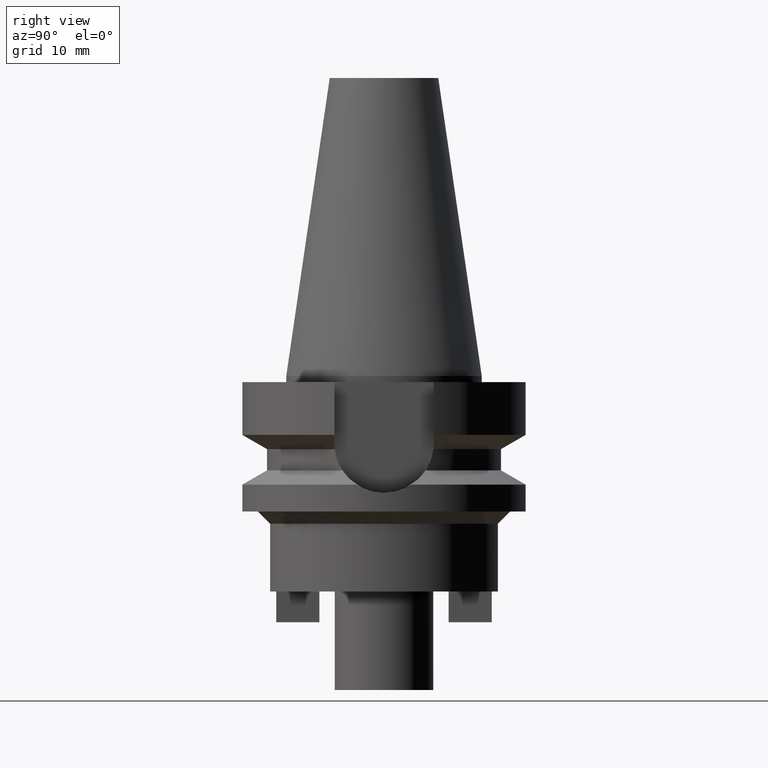
[diagram: clean part render]
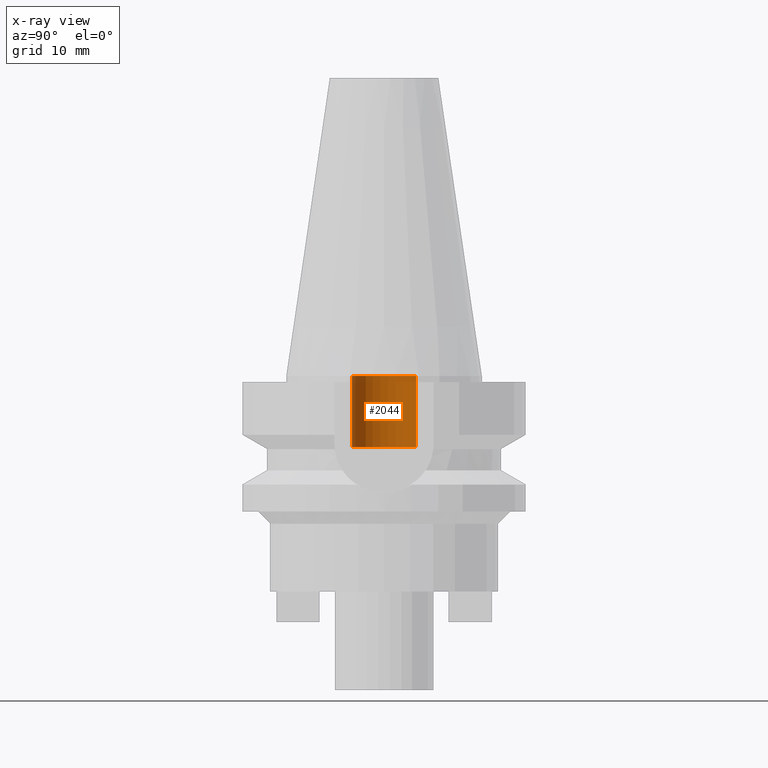
[diagram: x-ray — body ghosted, one internal face saturated and labeled with its STEP entity id]
A machine part, right view, then the same camera in x-ray: the body is ghosted and one INTERNAL B-rep face — a face not visible from any outside direction — is saturated and labeled: STEP entity #2044.
In plain terms, the highlighted cylindrical surface (edge-blend (fillet) strip) has radius 5.2 mm, axis along (0, 0, -1).
Its self-contained STEP definition (entity closure, byte-faithful):
#891=CARTESIAN_POINT('',(0.E0,1.878240795852E-14,-1.16E1));
#892=DIRECTION('',(0.E0,0.E0,-1.E0));
#893=DIRECTION('',(0.E0,-1.E0,0.E0));
#894=AXIS2_PLACEMENT_3D('',#891,#892,#893);
#923=DIRECTION('',(0.E0,0.E0,1.E0));
#924=VECTOR('',#923,1.16E1);
#925=CARTESIAN_POINT('',(0.E0,-5.2E0,-1.16E1));
#926=LINE('',#925,#924);
#930=CARTESIAN_POINT('',(0.E0,1.878240795852E-14,9.947598300641E-14));
#931=DIRECTION('',(0.E0,0.E0,-1.E0));
#932=DIRECTION('',(0.E0,-1.E0,0.E0));
#933=AXIS2_PLACEMENT_3D('',#930,#931,#932);
#938=DIRECTION('',(0.E0,0.E0,1.E0));
#939=VECTOR('',#938,1.16E1);
#940=CARTESIAN_POINT('',(0.E0,5.2E0,-1.16E1));
#941=LINE('',#940,#939);
#1189=CARTESIAN_POINT('',(0.E0,5.2E0,9.237055564881E-14));
#1190=VERTEX_POINT('',#1189);
#1191=CARTESIAN_POINT('',(0.E0,-5.2E0,9.237055564881E-14));
#1192=VERTEX_POINT('',#1191);
#1193=CARTESIAN_POINT('',(0.E0,5.2E0,-1.16E1));
#1194=VERTEX_POINT('',#1193);
#1195=CARTESIAN_POINT('',(0.E0,-5.2E0,-1.16E1));
#1196=VERTEX_POINT('',#1195);
#2030=CARTESIAN_POINT('',(0.E0,1.878240795852E-14,5.337E1));
#2031=DIRECTION('',(0.E0,0.E0,-1.E0));
#2032=DIRECTION('',(0.E0,-1.E0,0.E0));
#2033=AXIS2_PLACEMENT_3D('',#2030,#2031,#2032);
#2034=CYLINDRICAL_SURFACE('',#2033,5.2E0);
#2036=ORIENTED_EDGE('',*,*,#2035,.F.);
#2037=ORIENTED_EDGE('',*,*,#2019,.F.);
#2039=ORIENTED_EDGE('',*,*,#2038,.T.);
#2041=ORIENTED_EDGE('',*,*,#2040,.T.);
#2042=EDGE_LOOP('',(#2036,#2037,#2039,#2041));
#2043=FACE_OUTER_BOUND('',#2042,.F.);
#895=CIRCLE('',#894,5.2E0);
#934=CIRCLE('',#933,5.2E0);
#2019=EDGE_CURVE('',#1196,#1194,#895,.T.);
#2035=EDGE_CURVE('',#1194,#1190,#941,.T.);
#2038=EDGE_CURVE('',#1196,#1192,#926,.T.);
#2040=EDGE_CURVE('',#1192,#1190,#934,.T.);
#2044=ADVANCED_FACE('',(#2043),#2034,.F.);